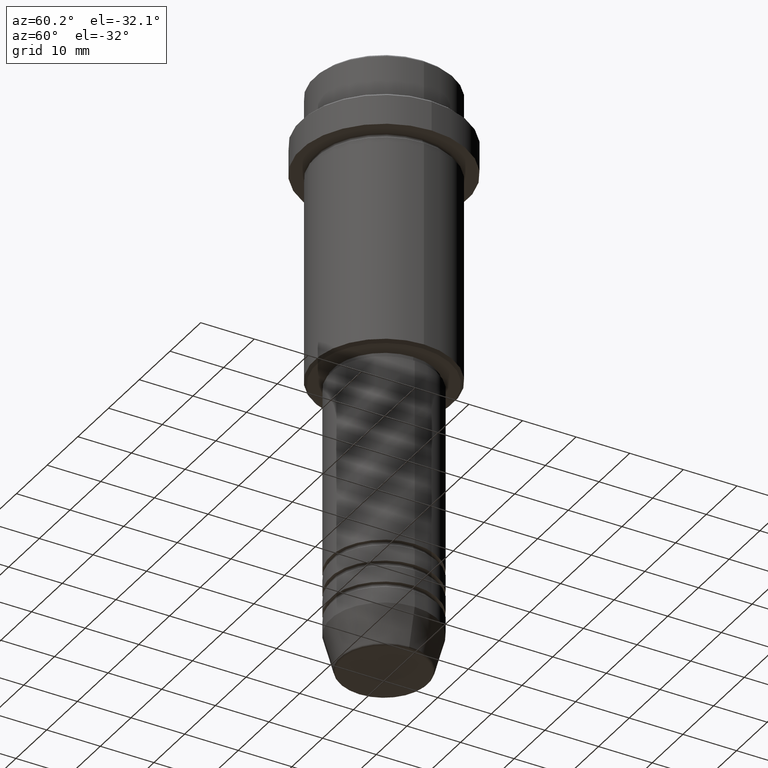
[diagram: clean part render]
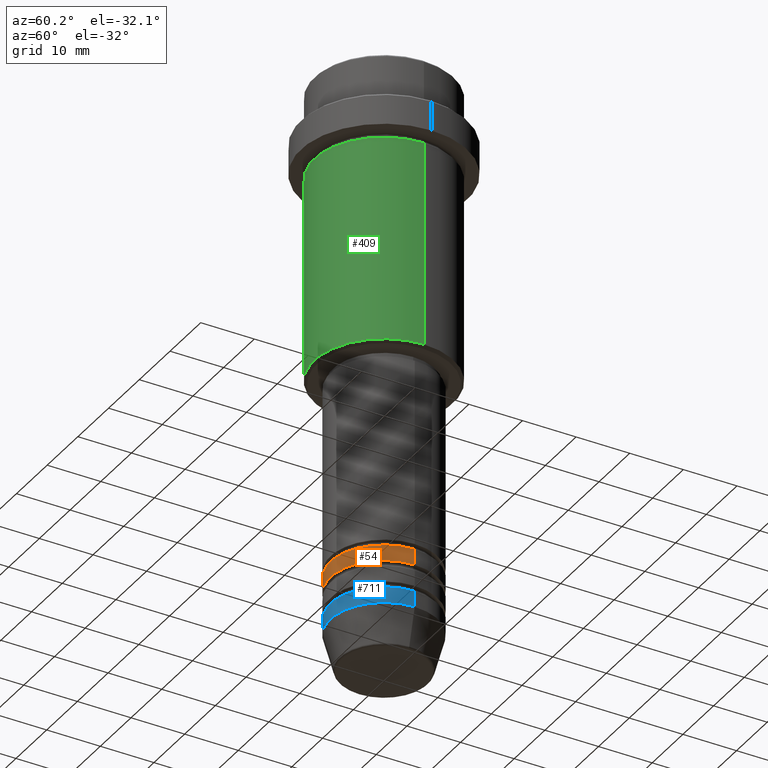
[diagram: same view with three faces highlighted in distinct colors, each labeled with its STEP entity id]
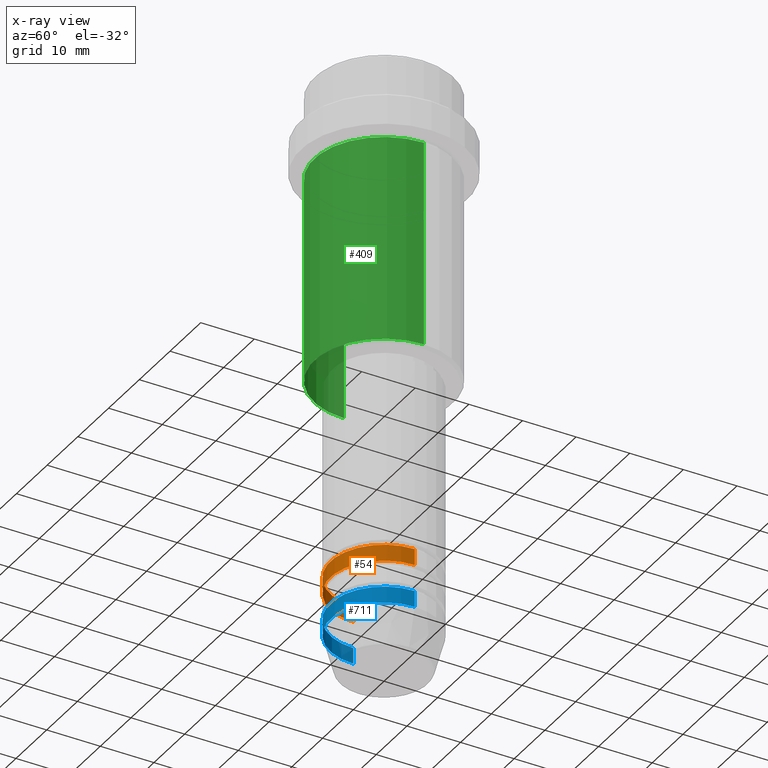
[diagram: x-ray of the same camera — body ghosted, the three highlighted faces saturated]
A machine part, auxiliary view with three faces highlighted in distinct colors.
The next image is the same camera in x-ray (body ghosted, the three faces saturated) — at least one of them is partly hidden behind the body in this view.
Their STEP definitions:

[orange] entity #54 — the highlighted cylindrical surface (partial cylindrical patch) has radius 10 mm, axis along (-0, -0, 1).
#44 = LINE ( 'NONE', #445, #103 ) ;
#54 = ADVANCED_FACE ( 'NONE', ( #656 ), #1404, .T. ) ;
#96 = CARTESIAN_POINT ( 'NONE',  ( -10.00000000000000000, 1.224646799147353256E-15, 0.000000000000000000 ) ) ;
#103 = VECTOR ( 'NONE', #119, 1000.000000000000000 ) ;
#119 = DIRECTION ( 'NONE',  ( -0.000000000000000000, -0.000000000000000000, 1.000000000000000000 ) ) ;
#199 = EDGE_CURVE ( 'NONE', #714, #531, #44, .T. ) ;
#255 = CIRCLE ( 'NONE', #826, 10.00000000000000000 ) ;
#383 = CARTESIAN_POINT ( 'NONE',  ( 0.000000000000000000, 0.000000000000000000, -94.99999999999988631 ) ) ;
#445 = CARTESIAN_POINT ( 'NONE',  ( 10.00000000000000000, 0.000000000000000000, 0.000000000000000000 ) ) ;
#465 = ORIENTED_EDGE ( 'NONE', *, *, #1061, .F. ) ;
#466 = DIRECTION ( 'NONE',  ( -0.000000000000000000, -0.000000000000000000, 1.000000000000000000 ) ) ;
#467 = CARTESIAN_POINT ( 'NONE',  ( -10.00000000000000000, 1.224646799147353256E-15, -94.99999999999988631 ) ) ;
#510 = VERTEX_POINT ( 'NONE', #1307 ) ;
#511 = ORIENTED_EDGE ( 'NONE', *, *, #199, .T. ) ;
#531 = VERTEX_POINT ( 'NONE', #878 ) ;
#552 = AXIS2_PLACEMENT_3D ( 'NONE', #383, #466, #599 ) ;
#575 = VECTOR ( 'NONE', #850, 1000.000000000000000 ) ;
#599 = DIRECTION ( 'NONE',  ( 1.000000000000000000, 0.000000000000000000, 0.000000000000000000 ) ) ;
#656 = FACE_OUTER_BOUND ( 'NONE', #1279, .T. ) ;
#657 = VERTEX_POINT ( 'NONE', #467 ) ;
#659 = DIRECTION ( 'NONE',  ( 1.000000000000000000, 0.000000000000000000, 0.000000000000000000 ) ) ;
#714 = VERTEX_POINT ( 'NONE', #1357 ) ;
#826 = AXIS2_PLACEMENT_3D ( 'NONE', #1134, #998, #659 ) ;
#836 = ORIENTED_EDGE ( 'NONE', *, *, #1147, .T. ) ;
#843 = ORIENTED_EDGE ( 'NONE', *, *, #866, .F. ) ;
#850 = DIRECTION ( 'NONE',  ( -0.000000000000000000, -0.000000000000000000, 1.000000000000000000 ) ) ;
#866 = EDGE_CURVE ( 'NONE', #657, #510, #1408, .T. ) ;
#872 = CIRCLE ( 'NONE', #552, 10.00000000000000000 ) ;
#878 = CARTESIAN_POINT ( 'NONE',  ( 10.00000000000000000, 0.000000000000000000, -91.99999999999988631 ) ) ;
#939 = AXIS2_PLACEMENT_3D ( 'NONE', #1204, #1111, #978 ) ;
#978 = DIRECTION ( 'NONE',  ( 1.000000000000000000, 0.000000000000000000, 0.000000000000000000 ) ) ;
#998 = DIRECTION ( 'NONE',  ( -0.000000000000000000, -0.000000000000000000, 1.000000000000000000 ) ) ;
#1061 = EDGE_CURVE ( 'NONE', #510, #531, #255, .T. ) ;
#1111 = DIRECTION ( 'NONE',  ( -0.000000000000000000, -0.000000000000000000, 1.000000000000000000 ) ) ;
#1134 = CARTESIAN_POINT ( 'NONE',  ( 0.000000000000000000, 0.000000000000000000, -91.99999999999988631 ) ) ;
#1147 = EDGE_CURVE ( 'NONE', #657, #714, #872, .T. ) ;
#1204 = CARTESIAN_POINT ( 'NONE',  ( 0.000000000000000000, 0.000000000000000000, 0.000000000000000000 ) ) ;
#1279 = EDGE_LOOP ( 'NONE', ( #843, #836, #511, #465 ) ) ;
#1307 = CARTESIAN_POINT ( 'NONE',  ( -10.00000000000000000, 1.224646799147353256E-15, -91.99999999999988631 ) ) ;
#1357 = CARTESIAN_POINT ( 'NONE',  ( 10.00000000000000000, 0.000000000000000000, -94.99999999999988631 ) ) ;
#1404 = CYLINDRICAL_SURFACE ( 'NONE', #939, 10.00000000000000000 ) ;
#1408 = LINE ( 'NONE', #96, #575 ) ;

[blue] entity #711 — the highlighted cylindrical surface (partial cylindrical patch) has radius 10 mm, axis along (-0, -0, 1).
#93 = ORIENTED_EDGE ( 'NONE', *, *, #393, .F. ) ;
#105 = AXIS2_PLACEMENT_3D ( 'NONE', #629, #543, #432 ) ;
#124 = CIRCLE ( 'NONE', #1140, 10.00000000000000000 ) ;
#131 = DIRECTION ( 'NONE',  ( -0.000000000000000000, -0.000000000000000000, 1.000000000000000000 ) ) ;
#233 = CARTESIAN_POINT ( 'NONE',  ( 10.00000000000000000, 0.000000000000000000, -100.0000000000000000 ) ) ;
#243 = CARTESIAN_POINT ( 'NONE',  ( -10.00000000000000000, 1.224646799147353256E-15, 0.000000000000000000 ) ) ;
#337 = LINE ( 'NONE', #243, #1025 ) ;
#346 = VECTOR ( 'NONE', #1131, 1000.000000000000000 ) ;
#369 = VERTEX_POINT ( 'NONE', #1255 ) ;
#393 = EDGE_CURVE ( 'NONE', #496, #520, #1139, .T. ) ;
#396 = VERTEX_POINT ( 'NONE', #1182 ) ;
#432 = DIRECTION ( 'NONE',  ( 1.000000000000000000, 0.000000000000000000, 0.000000000000000000 ) ) ;
#489 = DIRECTION ( 'NONE',  ( 1.000000000000000000, 0.000000000000000000, 0.000000000000000000 ) ) ;
#496 = VERTEX_POINT ( 'NONE', #842 ) ;
#503 = CARTESIAN_POINT ( 'NONE',  ( 0.000000000000000000, 0.000000000000000000, 0.000000000000000000 ) ) ;
#513 = DIRECTION ( 'NONE',  ( -0.000000000000000000, -0.000000000000000000, 1.000000000000000000 ) ) ;
#520 = VERTEX_POINT ( 'NONE', #233 ) ;
#543 = DIRECTION ( 'NONE',  ( -0.000000000000000000, -0.000000000000000000, 1.000000000000000000 ) ) ;
#581 = EDGE_CURVE ( 'NONE', #369, #520, #884, .T. ) ;
#589 = ORIENTED_EDGE ( 'NONE', *, *, #841, .T. ) ;
#607 = FACE_OUTER_BOUND ( 'NONE', #1256, .T. ) ;
#628 = CARTESIAN_POINT ( 'NONE',  ( 0.000000000000000000, 0.000000000000000000, -103.0000000000000142 ) ) ;
#629 = CARTESIAN_POINT ( 'NONE',  ( 0.000000000000000000, 0.000000000000000000, -100.0000000000000000 ) ) ;
#683 = ORIENTED_EDGE ( 'NONE', *, *, #581, .T. ) ;
#711 = ADVANCED_FACE ( 'NONE', ( #607 ), #1270, .T. ) ;
#840 = DIRECTION ( 'NONE',  ( 1.000000000000000000, 0.000000000000000000, 0.000000000000000000 ) ) ;
#841 = EDGE_CURVE ( 'NONE', #396, #369, #124, .T. ) ;
#842 = CARTESIAN_POINT ( 'NONE',  ( -10.00000000000000000, 1.224646799147353256E-15, -100.0000000000000000 ) ) ;
#884 = LINE ( 'NONE', #1015, #346 ) ;
#987 = ORIENTED_EDGE ( 'NONE', *, *, #1104, .F. ) ;
#1015 = CARTESIAN_POINT ( 'NONE',  ( 10.00000000000000000, 0.000000000000000000, 0.000000000000000000 ) ) ;
#1023 = AXIS2_PLACEMENT_3D ( 'NONE', #503, #1352, #489 ) ;
#1025 = VECTOR ( 'NONE', #131, 1000.000000000000000 ) ;
#1104 = EDGE_CURVE ( 'NONE', #396, #496, #337, .T. ) ;
#1131 = DIRECTION ( 'NONE',  ( -0.000000000000000000, -0.000000000000000000, 1.000000000000000000 ) ) ;
#1139 = CIRCLE ( 'NONE', #105, 10.00000000000000000 ) ;
#1140 = AXIS2_PLACEMENT_3D ( 'NONE', #628, #513, #840 ) ;
#1182 = CARTESIAN_POINT ( 'NONE',  ( -10.00000000000000000, 1.224646799147353256E-15, -103.0000000000000142 ) ) ;
#1255 = CARTESIAN_POINT ( 'NONE',  ( 10.00000000000000000, 0.000000000000000000, -103.0000000000000142 ) ) ;
#1256 = EDGE_LOOP ( 'NONE', ( #987, #589, #683, #93 ) ) ;
#1270 = CYLINDRICAL_SURFACE ( 'NONE', #1023, 10.00000000000000000 ) ;
#1352 = DIRECTION ( 'NONE',  ( -0.000000000000000000, -0.000000000000000000, 1.000000000000000000 ) ) ;

[green] entity #409 — the highlighted cylindrical surface (partial cylindrical patch) has radius 13 mm, axis along (-0, -0, 1).
#35 = EDGE_CURVE ( 'NONE', #1145, #1037, #546, .T. ) ;
#45 = CARTESIAN_POINT ( 'NONE',  ( 13.00000000000000000, 0.000000000000000000, -54.49999999999999289 ) ) ;
#100 = CARTESIAN_POINT ( 'NONE',  ( 0.000000000000000000, 0.000000000000000000, -54.49999999999999289 ) ) ;
#143 = CIRCLE ( 'NONE', #328, 13.00000000000000000 ) ;
#155 = CARTESIAN_POINT ( 'NONE',  ( -13.00000000000000000, 1.592040838891559095E-15, -54.49999999999999289 ) ) ;
#185 = DIRECTION ( 'NONE',  ( -0.000000000000000000, -0.000000000000000000, 1.000000000000000000 ) ) ;
#194 = DIRECTION ( 'NONE',  ( -0.000000000000000000, -0.000000000000000000, 1.000000000000000000 ) ) ;
#312 = CYLINDRICAL_SURFACE ( 'NONE', #1321, 13.00000000000000000 ) ;
#314 = VERTEX_POINT ( 'NONE', #380 ) ;
#328 = AXIS2_PLACEMENT_3D ( 'NONE', #100, #1180, #748 ) ;
#348 = DIRECTION ( 'NONE',  ( -0.000000000000000000, -0.000000000000000000, 1.000000000000000000 ) ) ;
#380 = CARTESIAN_POINT ( 'NONE',  ( -13.00000000000000000, 1.592040838891559095E-15, -16.00000000000000000 ) ) ;
#409 = ADVANCED_FACE ( 'NONE', ( #1100 ), #312, .T. ) ;
#504 = VECTOR ( 'NONE', #194, 1000.000000000000000 ) ;
#516 = DIRECTION ( 'NONE',  ( -0.000000000000000000, -0.000000000000000000, 1.000000000000000000 ) ) ;
#525 = CARTESIAN_POINT ( 'NONE',  ( -13.00000000000000000, 1.592040838891559095E-15, 0.000000000000000000 ) ) ;
#546 = LINE ( 'NONE', #768, #868 ) ;
#605 = EDGE_LOOP ( 'NONE', ( #715, #880, #1261, #838 ) ) ;
#617 = AXIS2_PLACEMENT_3D ( 'NONE', #782, #348, #1109 ) ;
#715 = ORIENTED_EDGE ( 'NONE', *, *, #876, .F. ) ;
#748 = DIRECTION ( 'NONE',  ( -1.000000000000000000, 0.000000000000000000, 0.000000000000000000 ) ) ;
#768 = CARTESIAN_POINT ( 'NONE',  ( 13.00000000000000000, 0.000000000000000000, 0.000000000000000000 ) ) ;
#782 = CARTESIAN_POINT ( 'NONE',  ( 0.000000000000000000, 0.000000000000000000, -16.00000000000000000 ) ) ;
#838 = ORIENTED_EDGE ( 'NONE', *, *, #993, .F. ) ;
#868 = VECTOR ( 'NONE', #516, 1000.000000000000000 ) ;
#874 = EDGE_CURVE ( 'NONE', #1237, #1145, #143, .T. ) ;
#876 = EDGE_CURVE ( 'NONE', #1237, #314, #1306, .T. ) ;
#880 = ORIENTED_EDGE ( 'NONE', *, *, #874, .T. ) ;
#888 = CARTESIAN_POINT ( 'NONE',  ( 13.00000000000000000, 0.000000000000000000, -16.00000000000000000 ) ) ;
#993 = EDGE_CURVE ( 'NONE', #314, #1037, #1362, .T. ) ;
#1037 = VERTEX_POINT ( 'NONE', #888 ) ;
#1100 = FACE_OUTER_BOUND ( 'NONE', #605, .T. ) ;
#1109 = DIRECTION ( 'NONE',  ( 1.000000000000000000, 0.000000000000000000, 0.000000000000000000 ) ) ;
#1145 = VERTEX_POINT ( 'NONE', #45 ) ;
#1180 = DIRECTION ( 'NONE',  ( -0.000000000000000000, -0.000000000000000000, 1.000000000000000000 ) ) ;
#1197 = CARTESIAN_POINT ( 'NONE',  ( 0.000000000000000000, 0.000000000000000000, 0.000000000000000000 ) ) ;
#1237 = VERTEX_POINT ( 'NONE', #155 ) ;
#1261 = ORIENTED_EDGE ( 'NONE', *, *, #35, .T. ) ;
#1306 = LINE ( 'NONE', #525, #504 ) ;
#1321 = AXIS2_PLACEMENT_3D ( 'NONE', #1197, #185, #1410 ) ;
#1362 = CIRCLE ( 'NONE', #617, 13.00000000000000000 ) ;
#1410 = DIRECTION ( 'NONE',  ( 1.000000000000000000, 0.000000000000000000, 0.000000000000000000 ) ) ;